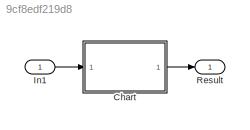
MODEL slx_9cf8edf219d8
KIND model
CONFIG AbsTol = auto
CONFIG EnableMultiTasking = off
CONFIG FixedStep = auto
CONFIG MaxStep = auto
CONFIG MinStep = auto
CONFIG RelTol = 1e-3
CONFIG SampleTimeConstraint = Unconstrained
CONFIG Solver = FixedStepDiscrete
CONFIG SolverName = FixedStepDiscrete
CONFIG StartTime = 0.0
CONFIG StopTime = 10.0
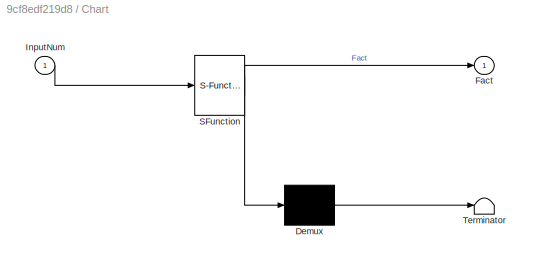
BLOCK [SubSystem] Chart
  ErrorFcn = Stateflow.Translate.translate
  PermitHierarchicalResolution = ExplicitOnly
  Ports = [1, 1]
  RequestExecContextInheritance = off
  SFBlockType = Chart
  TreatAsAtomicUnit = on
BLOCK [Demux] Chart/ Demux 
  Outputs = 1
  Ports = [1, 1]
BLOCK [S-Function] Chart/ SFunction 
  EnableBusSupport = on
  FunctionName = sf_sfun
  PortCounts = [1 2]
  Ports = [1, 2]
  SFcnIsStateOwnerBlock = off
  SFunctionDeploymentMode = off
  Tag = Stateflow S-Function Factorial_StateFlow 3
BLOCK [Terminator] Chart/ Terminator 
BLOCK [Outport] Chart/Fact
  IconDisplay = Port number
BLOCK [Inport] Chart/InputNum
  IconDisplay = Port number
BLOCK [Inport] In1
  IconDisplay = Port number
  OutDataTypeStr = uint16
BLOCK [Outport] Result
  IconDisplay = Port number
  OutDataTypeStr = uint16
LINE Chart:1 -> Result:1
LINE In1:1 -> Chart:1
CHART Chart states=0 transitions=6
